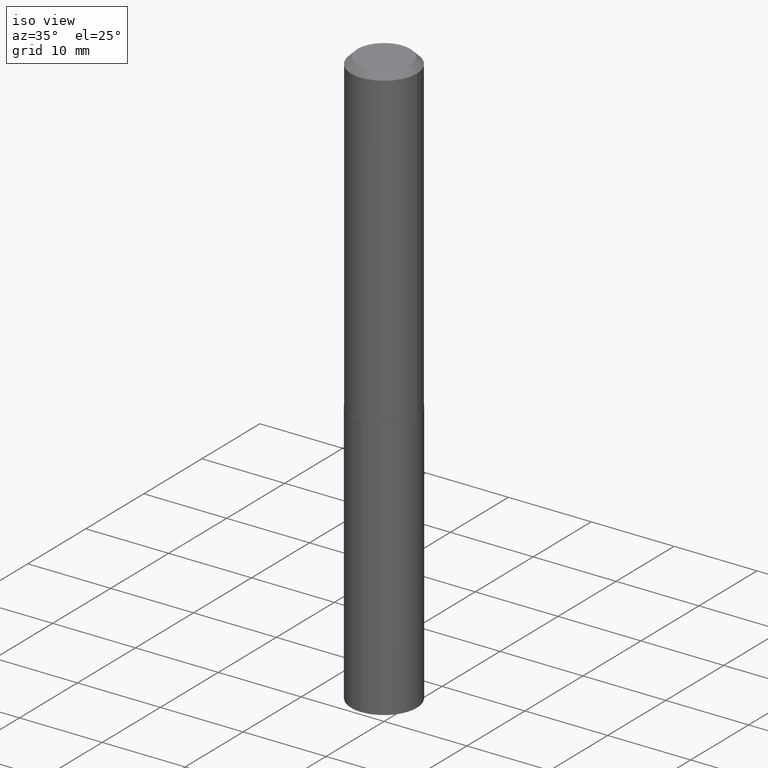
[diagram: clean part render]
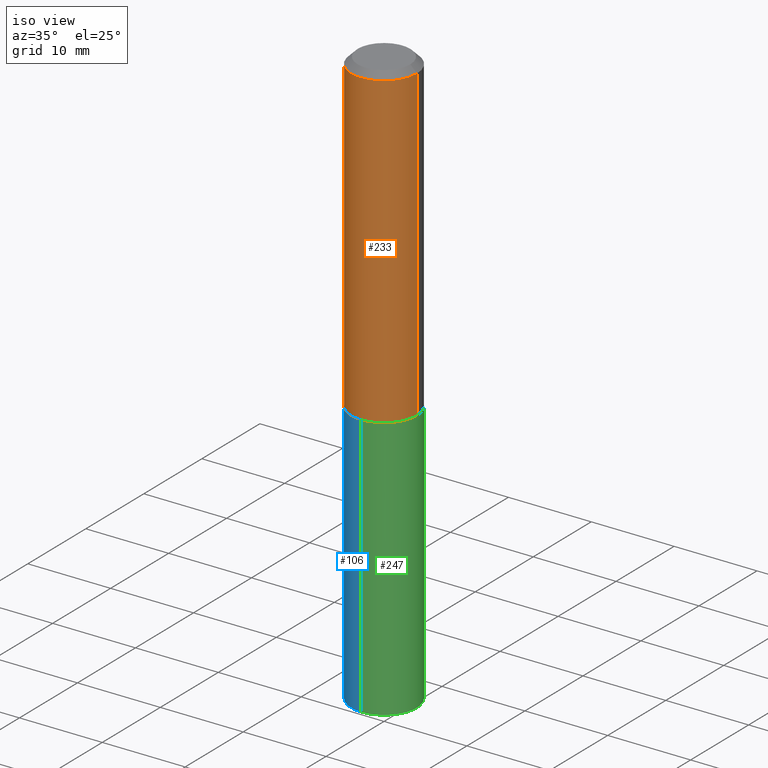
[diagram: same view with three faces highlighted in distinct colors, each labeled with its STEP entity id]
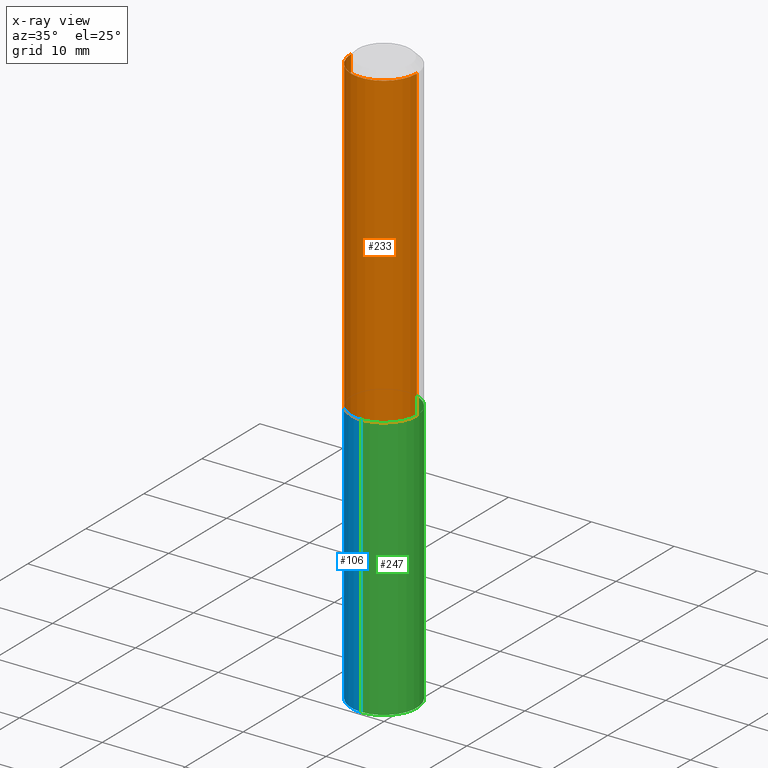
[diagram: x-ray of the same camera — body ghosted, the three highlighted faces saturated]
A machine part, iso view with three faces highlighted in distinct colors.
The next image is the same camera in x-ray (body ghosted, the three faces saturated) — at least one of them is partly hidden behind the body in this view.
Their STEP definitions:

[orange] entity #233 — the highlighted cylindrical surface (partial cylindrical patch) has radius 3.9688 mm, axis along (-0, 0, 1).
#3 = DIRECTION ( 'NONE',  ( -2.445468806185136597E-29, 3.491481338843145583E-15, 1.000000000000000000 ) ) ;
#7 = LINE ( 'NONE', #43, #251 ) ;
#10 = DIRECTION ( 'NONE',  ( 1.000000000000000000, -6.982962677686266711E-15, 4.876176775795936353E-29 ) ) ;
#18 = VERTEX_POINT ( 'NONE', #85 ) ;
#43 = CARTESIAN_POINT ( 'NONE',  ( -0.1562500000000001388, 1.110223024625157526E-15, -7.685836078523296765E-30 ) ) ;
#49 = VERTEX_POINT ( 'NONE', #296 ) ;
#51 = CIRCLE ( 'NONE', #265, 0.1562500000000000000 ) ;
#68 = ORIENTED_EDGE ( 'NONE', *, *, #332, .T. ) ;
#72 = DIRECTION ( 'NONE',  ( -2.445468806185136877E-29, 3.491481338843145188E-15, 1.000000000000000000 ) ) ;
#76 = ORIENTED_EDGE ( 'NONE', *, *, #188, .T. ) ;
#85 = CARTESIAN_POINT ( 'NONE',  ( -0.1562500000000000000, -1.562069505091914769E-15, -0.03125000000000021511 ) ) ;
#93 = EDGE_CURVE ( 'NONE', #18, #49, #51, .T. ) ;
#98 = CARTESIAN_POINT ( 'NONE',  ( 7.642090019328604414E-31, -1.091087918388490513E-16, -0.03125000000000021511 ) ) ;
#102 = DIRECTION ( 'NONE',  ( 1.000000000000000000, -6.982962677686264344E-15, 0.000000000000000000 ) ) ;
#143 = VERTEX_POINT ( 'NONE', #241 ) ;
#152 = EDGE_CURVE ( 'NONE', #167, #18, #7, .T. ) ;
#153 = VECTOR ( 'NONE', #323, 39.37007874015748143 ) ;
#155 = CARTESIAN_POINT ( 'NONE',  ( -0.1562500000000002498, -4.125253242970138555E-15, -1.499500000000000277 ) ) ;
#156 = FACE_OUTER_BOUND ( 'NONE', #352, .T. ) ;
#167 = VERTEX_POINT ( 'NONE', #155 ) ;
#185 = CIRCLE ( 'NONE', #357, 0.1562500000000002498 ) ;
#188 = EDGE_CURVE ( 'NONE', #167, #143, #185, .T. ) ;
#189 = CYLINDRICAL_SURFACE ( 'NONE', #237, 0.1562500000000001388 ) ;
#218 = CARTESIAN_POINT ( 'NONE',  ( 0.1562500000000001388, -1.091087918388480160E-15, 7.619026212181157383E-30 ) ) ;
#220 = LINE ( 'NONE', #218, #153 ) ;
#224 = ORIENTED_EDGE ( 'NONE', *, *, #93, .F. ) ;
#233 = ADVANCED_FACE ( 'NONE', ( #156 ), #189, .T. ) ;
#237 = AXIS2_PLACEMENT_3D ( 'NONE', #339, #3, #10 ) ;
#241 = CARTESIAN_POINT ( 'NONE',  ( 0.1562500000000002498, -6.326564185983777424E-15, -1.499500000000000277 ) ) ;
#251 = VECTOR ( 'NONE', #72, 39.37007874015748143 ) ;
#265 = AXIS2_PLACEMENT_3D ( 'NONE', #98, #279, #309 ) ;
#279 = DIRECTION ( 'NONE',  ( -2.445468806185136597E-29, 3.491481338843145583E-15, 1.000000000000000000 ) ) ;
#296 = CARTESIAN_POINT ( 'NONE',  ( 0.1562500000000000000, -1.200196710227328077E-15, -0.03125000000000021511 ) ) ;
#307 = CARTESIAN_POINT ( 'NONE',  ( 3.666980474874613215E-29, -5.235476267595297462E-15, -1.499500000000000277 ) ) ;
#309 = DIRECTION ( 'NONE',  ( 1.000000000000000000, -6.982962677686265133E-15, 0.000000000000000000 ) ) ;
#323 = DIRECTION ( 'NONE',  ( -2.445468806185136877E-29, 3.491481338843145188E-15, 1.000000000000000000 ) ) ;
#332 = EDGE_CURVE ( 'NONE', #143, #49, #220, .T. ) ;
#339 = CARTESIAN_POINT ( 'NONE',  ( 0.000000000000000000, 0.000000000000000000, 0.000000000000000000 ) ) ;
#352 = EDGE_LOOP ( 'NONE', ( #377, #76, #68, #224 ) ) ;
#357 = AXIS2_PLACEMENT_3D ( 'NONE', #307, #366, #102 ) ;
#366 = DIRECTION ( 'NONE',  ( -2.445468806185136597E-29, 3.491481338843145583E-15, 1.000000000000000000 ) ) ;
#377 = ORIENTED_EDGE ( 'NONE', *, *, #152, .F. ) ;

[blue] entity #106 — the highlighted cylindrical surface (partial cylindrical patch) has radius 3.9688 mm, axis along (-0, 0, 1).
#6 = ORIENTED_EDGE ( 'NONE', *, *, #54, .F. ) ;
#16 = CARTESIAN_POINT ( 'NONE',  ( -1.091087918388411726E-15, -0.1562500000000096034, -2.755629650895905058 ) ) ;
#17 = AXIS2_PLACEMENT_3D ( 'NONE', #169, #223, #73 ) ;
#22 = LINE ( 'NONE', #358, #219 ) ;
#37 = AXIS2_PLACEMENT_3D ( 'NONE', #313, #245, #183 ) ;
#41 = CARTESIAN_POINT ( 'NONE',  ( -1.091087918388442491E-15, -0.1562500000000052180, -1.499999999999999556 ) ) ;
#54 = EDGE_CURVE ( 'NONE', #71, #100, #22, .T. ) ;
#67 = DIRECTION ( 'NONE',  ( -2.445534105002635684E-29, 3.491387827219909134E-15, 1.000000000000000000 ) ) ;
#71 = VERTEX_POINT ( 'NONE', #211 ) ;
#73 = DIRECTION ( 'NONE',  ( -6.982962677686265133E-15, -1.000000000000000000, 3.496765431890256920E-15 ) ) ;
#77 = CARTESIAN_POINT ( 'NONE',  ( 3.668203209277704895E-29, -5.237222008264718177E-15, -1.500000000000000222 ) ) ;
#80 = EDGE_CURVE ( 'NONE', #250, #109, #249, .T. ) ;
#100 = VERTEX_POINT ( 'NONE', #246 ) ;
#104 = FACE_OUTER_BOUND ( 'NONE', #285, .T. ) ;
#106 = ADVANCED_FACE ( 'NONE', ( #104 ), #344, .T. ) ;
#109 = VERTEX_POINT ( 'NONE', #126 ) ;
#126 = CARTESIAN_POINT ( 'NONE',  ( -1.091087918388442491E-15, -0.1562500000000052180, -1.499999999999999556 ) ) ;
#127 = AXIS2_PLACEMENT_3D ( 'NONE', #77, #286, #350 ) ;
#169 = CARTESIAN_POINT ( 'NONE',  ( 6.738888343796194828E-29, -9.621112086899066152E-15, -2.755629650895905947 ) ) ;
#183 = DIRECTION ( 'NONE',  ( -6.982962677686265133E-15, -1.000000000000000000, 3.496765431890256920E-15 ) ) ;
#186 = DIRECTION ( 'NONE',  ( -2.445534105002635684E-29, 3.491387827219909134E-15, 1.000000000000000000 ) ) ;
#187 = ORIENTED_EDGE ( 'NONE', *, *, #80, .T. ) ;
#211 = CARTESIAN_POINT ( 'NONE',  ( 1.110223024625223791E-15, 0.1562499999999903411, -2.755629650895906391 ) ) ;
#214 = VECTOR ( 'NONE', #67, 39.37007874015748143 ) ;
#219 = VECTOR ( 'NONE', #186, 39.37007874015748143 ) ;
#223 = DIRECTION ( 'NONE',  ( -2.445534105002635964E-29, 3.491387827219908740E-15, 1.000000000000000000 ) ) ;
#229 = CIRCLE ( 'NONE', #127, 0.1562500000000000000 ) ;
#245 = DIRECTION ( 'NONE',  ( -2.445534105002635964E-29, 3.491387827219908740E-15, 1.000000000000000000 ) ) ;
#246 = CARTESIAN_POINT ( 'NONE',  ( 1.110223024625224185E-15, 0.1562499999999947820, -1.500000000000000666 ) ) ;
#249 = LINE ( 'NONE', #41, #214 ) ;
#250 = VERTEX_POINT ( 'NONE', #16 ) ;
#254 = EDGE_CURVE ( 'NONE', #100, #109, #229, .T. ) ;
#256 = ORIENTED_EDGE ( 'NONE', *, *, #308, .T. ) ;
#285 = EDGE_LOOP ( 'NONE', ( #6, #256, #187, #373 ) ) ;
#286 = DIRECTION ( 'NONE',  ( -2.445534105002635964E-29, 3.491387827219908740E-15, 1.000000000000000000 ) ) ;
#308 = EDGE_CURVE ( 'NONE', #71, #250, #346, .T. ) ;
#313 = CARTESIAN_POINT ( 'NONE',  ( 3.668203209277704895E-29, -5.237222008264718177E-15, -1.500000000000000222 ) ) ;
#344 = CYLINDRICAL_SURFACE ( 'NONE', #37, 0.1562500000000000000 ) ;
#346 = CIRCLE ( 'NONE', #17, 0.1562500000000000000 ) ;
#350 = DIRECTION ( 'NONE',  ( -6.982962677686265133E-15, -1.000000000000000000, 3.496765431890256920E-15 ) ) ;
#358 = CARTESIAN_POINT ( 'NONE',  ( 1.110223024625193025E-15, 0.1562499999999947820, -1.500000000000000666 ) ) ;
#373 = ORIENTED_EDGE ( 'NONE', *, *, #254, .F. ) ;

[green] entity #247 — the highlighted cylindrical surface (partial cylindrical patch) has radius 3.9688 mm, axis along (-0, 0, 1).
#13 = DIRECTION ( 'NONE',  ( -2.445534105002635964E-29, 3.491387827219908740E-15, 1.000000000000000000 ) ) ;
#16 = CARTESIAN_POINT ( 'NONE',  ( -1.091087918388411726E-15, -0.1562500000000096034, -2.755629650895905058 ) ) ;
#22 = LINE ( 'NONE', #358, #219 ) ;
#39 = ORIENTED_EDGE ( 'NONE', *, *, #213, .T. ) ;
#41 = CARTESIAN_POINT ( 'NONE',  ( -1.091087918388442491E-15, -0.1562500000000052180, -1.499999999999999556 ) ) ;
#54 = EDGE_CURVE ( 'NONE', #71, #100, #22, .T. ) ;
#67 = DIRECTION ( 'NONE',  ( -2.445534105002635684E-29, 3.491387827219909134E-15, 1.000000000000000000 ) ) ;
#69 = CARTESIAN_POINT ( 'NONE',  ( 6.738888343796194828E-29, -9.621112086899066152E-15, -2.755629650895905947 ) ) ;
#71 = VERTEX_POINT ( 'NONE', #211 ) ;
#75 = AXIS2_PLACEMENT_3D ( 'NONE', #69, #132, #215 ) ;
#80 = EDGE_CURVE ( 'NONE', #250, #109, #249, .T. ) ;
#96 = CIRCLE ( 'NONE', #75, 0.1562500000000000000 ) ;
#100 = VERTEX_POINT ( 'NONE', #246 ) ;
#109 = VERTEX_POINT ( 'NONE', #126 ) ;
#110 = CARTESIAN_POINT ( 'NONE',  ( 3.668203209277704895E-29, -5.237222008264718177E-15, -1.500000000000000222 ) ) ;
#111 = ORIENTED_EDGE ( 'NONE', *, *, #80, .F. ) ;
#115 = CIRCLE ( 'NONE', #128, 0.1562500000000000000 ) ;
#126 = CARTESIAN_POINT ( 'NONE',  ( -1.091087918388442491E-15, -0.1562500000000052180, -1.499999999999999556 ) ) ;
#128 = AXIS2_PLACEMENT_3D ( 'NONE', #110, #191, #193 ) ;
#132 = DIRECTION ( 'NONE',  ( -2.445534105002635964E-29, 3.491387827219908740E-15, 1.000000000000000000 ) ) ;
#137 = CYLINDRICAL_SURFACE ( 'NONE', #316, 0.1562500000000000000 ) ;
#144 = CARTESIAN_POINT ( 'NONE',  ( 3.668203209277704895E-29, -5.237222008264718177E-15, -1.500000000000000222 ) ) ;
#186 = DIRECTION ( 'NONE',  ( -2.445534105002635684E-29, 3.491387827219909134E-15, 1.000000000000000000 ) ) ;
#191 = DIRECTION ( 'NONE',  ( -2.445534105002635964E-29, 3.491387827219908740E-15, 1.000000000000000000 ) ) ;
#193 = DIRECTION ( 'NONE',  ( -6.982962677686265133E-15, -1.000000000000000000, 3.496765431890256920E-15 ) ) ;
#211 = CARTESIAN_POINT ( 'NONE',  ( 1.110223024625223791E-15, 0.1562499999999903411, -2.755629650895906391 ) ) ;
#213 = EDGE_CURVE ( 'NONE', #250, #71, #96, .T. ) ;
#214 = VECTOR ( 'NONE', #67, 39.37007874015748143 ) ;
#215 = DIRECTION ( 'NONE',  ( -6.982962677686265133E-15, -1.000000000000000000, 3.496765431890256920E-15 ) ) ;
#219 = VECTOR ( 'NONE', #186, 39.37007874015748143 ) ;
#239 = EDGE_LOOP ( 'NONE', ( #39, #381, #280, #111 ) ) ;
#246 = CARTESIAN_POINT ( 'NONE',  ( 1.110223024625224185E-15, 0.1562499999999947820, -1.500000000000000666 ) ) ;
#247 = ADVANCED_FACE ( 'NONE', ( #257 ), #137, .T. ) ;
#249 = LINE ( 'NONE', #41, #214 ) ;
#250 = VERTEX_POINT ( 'NONE', #16 ) ;
#257 = FACE_OUTER_BOUND ( 'NONE', #239, .T. ) ;
#280 = ORIENTED_EDGE ( 'NONE', *, *, #315, .F. ) ;
#315 = EDGE_CURVE ( 'NONE', #109, #100, #115, .T. ) ;
#316 = AXIS2_PLACEMENT_3D ( 'NONE', #144, #13, #320 ) ;
#320 = DIRECTION ( 'NONE',  ( -6.982962677686265133E-15, -1.000000000000000000, 3.496765431890256920E-15 ) ) ;
#358 = CARTESIAN_POINT ( 'NONE',  ( 1.110223024625193025E-15, 0.1562499999999947820, -1.500000000000000666 ) ) ;
#381 = ORIENTED_EDGE ( 'NONE', *, *, #54, .T. ) ;